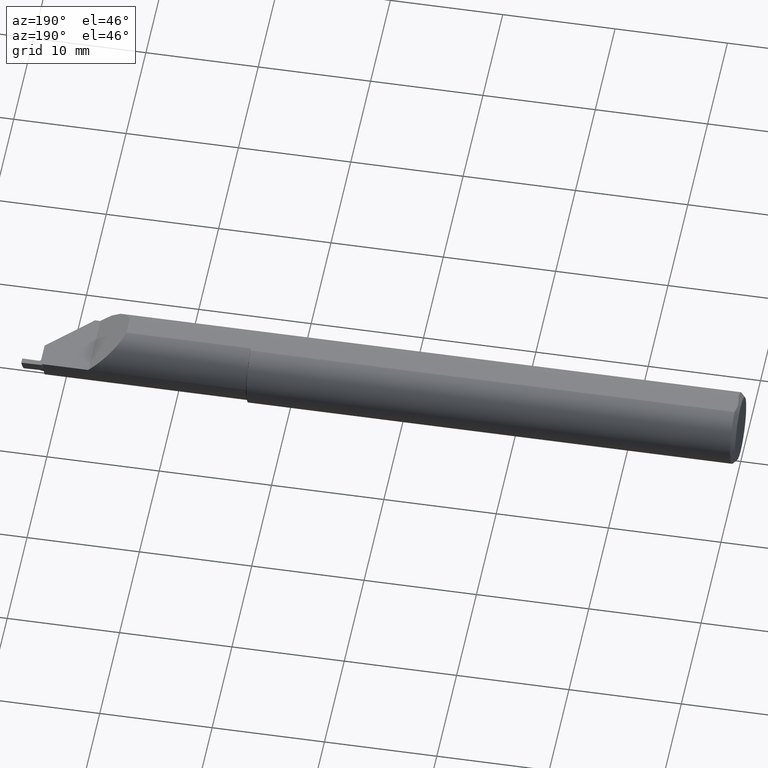
[diagram: clean part render]
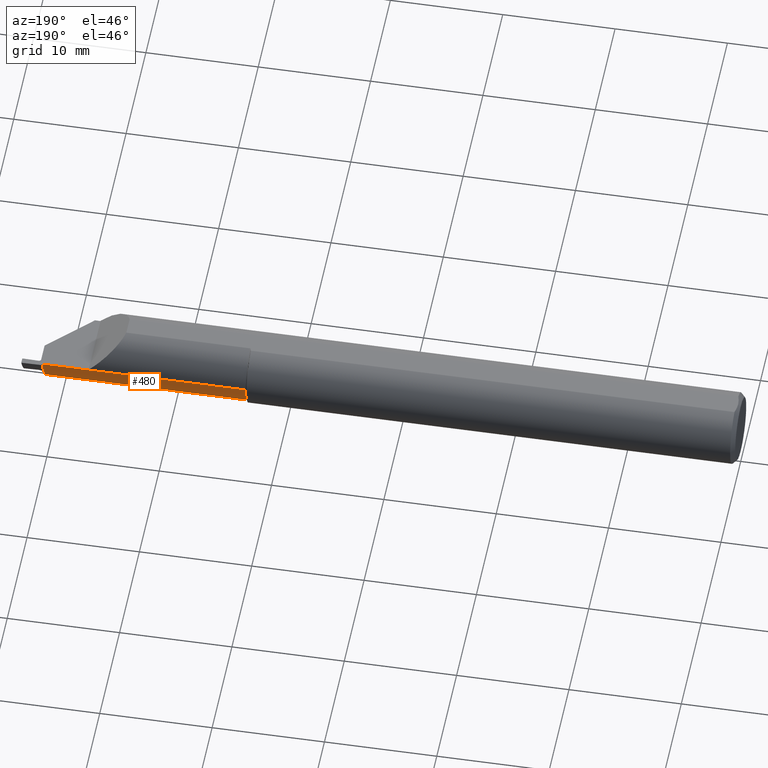
[diagram: same view with one face highlighted and labeled with its STEP entity id]
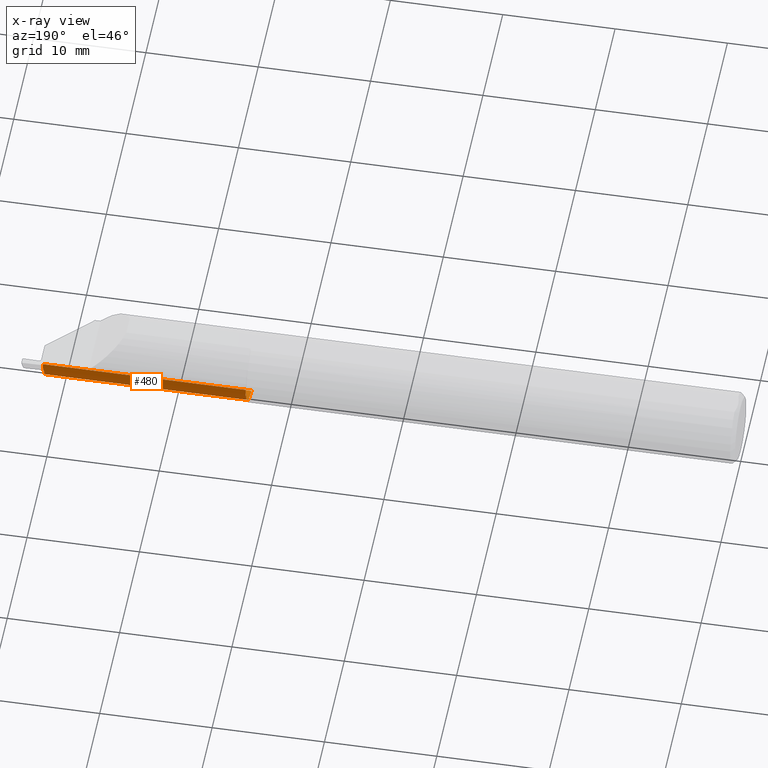
[diagram: x-ray of the same camera — body ghosted, the highlighted face saturated]
A machine part, auxiliary view. The second image highlights one B-rep face of the part: STEP entity #480.
The next image is the same camera in x-ray: the body ghosted, the highlighted face saturated — about 0% of this face is hidden behind the body in this view.
In plain terms, the highlighted cylindrical surface (edge-blend (fillet) strip) has radius 3.175 mm, axis along (1, 0, -0).
Its self-contained STEP definition (entity closure, byte-faithful):
#17 = CARTESIAN_POINT ( 'NONE',  ( 2.430000000000000160, -0.01115076164021940389, 0.000000000000000000 ) ) ;
#18 = VERTEX_POINT ( 'NONE', #173 ) ;
#27 = ORIENTED_EDGE ( 'NONE', *, *, #829, .F. ) ;
#54 = AXIS2_PLACEMENT_3D ( 'NONE', #88, #439, #382 ) ;
#69 = VERTEX_POINT ( 'NONE', #295 ) ;
#88 = CARTESIAN_POINT ( 'NONE',  ( 2.424999999999999822, -0.01115076164021940389, 0.000000000000000000 ) ) ;
#135 = CARTESIAN_POINT ( 'NONE',  ( 2.422843776397741067, 0.1044787311100553451, -0.04748494926094129487 ) ) ;
#137 = CARTESIAN_POINT ( 'NONE',  ( 1.715000000000000080, -0.01115076164021948195, 0.000000000000000000 ) ) ;
#142 = CARTESIAN_POINT ( 'NONE',  ( 2.430000000000000160, 0.1138492383597806412, 0.000000000000000000 ) ) ;
#146 = CIRCLE ( 'NONE', #54, 0.1250000000000001110 ) ;
#158 = CARTESIAN_POINT ( 'NONE',  ( 2.422940269560077020, 0.1069406022796521444, -0.04112310530747520509 ) ) ;
#161 = CARTESIAN_POINT ( 'NONE',  ( 2.422843776397741067, 0.1044787311100553451, -0.04748494926094129487 ) ) ;
#173 = CARTESIAN_POINT ( 'NONE',  ( 2.424999999999999822, 0.1106539908770247521, -0.02808206303341891780 ) ) ;
#178 = CARTESIAN_POINT ( 'NONE',  ( 2.423124072744776036, 0.08842056414315845048, -0.08658781721764803596 ) ) ;
#181 = EDGE_CURVE ( 'NONE', #709, #649, #434, .T. ) ;
#194 = CYLINDRICAL_SURFACE ( 'NONE', #786, 0.1250000000000000555 ) ;
#211 = B_SPLINE_CURVE_WITH_KNOTS ( 'NONE', 3,
 ( #353, #845, #158, #625, #438, #710 ),
 .UNSPECIFIED., .F., .F.,
 ( 4, 2, 4 ),
 ( 0.0005002341761980562624, 0.0007616272360342175255, 0.001023020295870378897 ),
 .UNSPECIFIED. ) ;
#228 = CARTESIAN_POINT ( 'NONE',  ( 2.424413256839188957, 0.01456325683918885047, -0.1223265680612378864 ) ) ;
#237 = CARTESIAN_POINT ( 'NONE',  ( 2.430000000000000160, 0.1138492383597806412, 0.000000000000000000 ) ) ;
#241 = LINE ( 'NONE', #237, #886 ) ;
#249 = EDGE_CURVE ( 'NONE', #649, #18, #211, .T. ) ;
#259 = EDGE_CURVE ( 'NONE', #721, #724, #760, .T. ) ;
#266 = AXIS2_PLACEMENT_3D ( 'NONE', #137, #635, #425 ) ;
#280 = DIRECTION ( 'NONE',  ( 0.000000000000000000, 1.000000000000000000, 0.000000000000000000 ) ) ;
#295 = CARTESIAN_POINT ( 'NONE',  ( 2.405955109769241318, -0.003894890230758989852, -0.1247892316271314583 ) ) ;
#301 = CARTESIAN_POINT ( 'NONE',  ( 1.715000000000000080, 0.1138492383597805441, 0.000000000000000000 ) ) ;
#304 = DIRECTION ( 'NONE',  ( 1.000000000000000000, 1.096770570373022412E-16, -0.000000000000000000 ) ) ;
#333 = EDGE_CURVE ( 'NONE', #413, #69, #588, .T. ) ;
#349 = ORIENTED_EDGE ( 'NONE', *, *, #733, .F. ) ;
#350 = DIRECTION ( 'NONE',  ( 1.000000000000000000, 1.096770570373022289E-16, -0.000000000000000000 ) ) ;
#353 = CARTESIAN_POINT ( 'NONE',  ( 2.422843776397741067, 0.1044787311100553451, -0.04748494926094129487 ) ) ;
#367 = ORIENTED_EDGE ( 'NONE', *, *, #249, .F. ) ;
#372 = ORIENTED_EDGE ( 'NONE', *, *, #181, .F. ) ;
#382 = DIRECTION ( 'NONE',  ( 0.000000000000000000, 1.000000000000000000, 0.000000000000000000 ) ) ;
#396 = CARTESIAN_POINT ( 'NONE',  ( 2.418327507916967711, 0.008477507916967457272, -0.1236058409348846504 ) ) ;
#403 = EDGE_CURVE ( 'NONE', #871, #724, #241, .T. ) ;
#404 = ORIENTED_EDGE ( 'NONE', *, *, #403, .F. ) ;
#413 = VERTEX_POINT ( 'NONE', #453 ) ;
#425 = DIRECTION ( 'NONE',  ( 0.000000000000000000, 1.000000000000000000, 0.000000000000000000 ) ) ;
#434 =( BOUNDED_CURVE ( )  B_SPLINE_CURVE ( 3, ( #525, #756, #178, #135 ),
 .UNSPECIFIED., .F., .T. ) 
 B_SPLINE_CURVE_WITH_KNOTS ( ( 4, 4 ),
 ( 1.777987690206964233, 2.751926524091296677 ),
 .UNSPECIFIED. ) 
 CURVE ( )  GEOMETRIC_REPRESENTATION_ITEM ( )  RATIONAL_B_SPLINE_CURVE ( ( 1.000000000000000000, 0.9225033836062914716, 0.9225033836062914716, 1.000000000000000000 ) ) 
 REPRESENTATION_ITEM ( '' )  );
#438 = CARTESIAN_POINT ( 'NONE',  ( 2.423977147130281562, 0.1099123102848302141, -0.03129907101718395340 ) ) ;
#439 = DIRECTION ( 'NONE',  ( 1.000000000000000000, 1.096770570373022289E-16, -0.000000000000000000 ) ) ;
#453 = CARTESIAN_POINT ( 'NONE',  ( 1.715000000000000080, -0.003894890230802504089, -0.1247892316271320273 ) ) ;
#480 = ADVANCED_FACE ( 'NONE', ( #812 ), #194, .T. ) ;
#497 = VECTOR ( 'NONE', #304, 39.37007874015748143 ) ;
#502 = EDGE_LOOP ( 'NONE', ( #634, #699, #404, #349, #367, #372, #27, #549 ) ) ;
#519 = DIRECTION ( 'NONE',  ( -1.000000000000000000, -1.096770570373022412E-16, 0.000000000000000000 ) ) ;
#525 = CARTESIAN_POINT ( 'NONE',  ( 2.424413256839188957, 0.01456325683918885047, -0.1223265680612378864 ) ) ;
#529 = EDGE_CURVE ( 'NONE', #413, #721, #658, .T. ) ;
#549 = ORIENTED_EDGE ( 'NONE', *, *, #333, .F. ) ;
#588 = LINE ( 'NONE', #790, #497 ) ;
#594 = CARTESIAN_POINT ( 'NONE',  ( 2.265000000000000124, 0.1138492383597806273, 0.000000000000000000 ) ) ;
#601 = CARTESIAN_POINT ( 'NONE',  ( 2.412163376247374647, 0.002313376247374147442, -0.1244282518963175654 ) ) ;
#605 = CARTESIAN_POINT ( 'NONE',  ( 2.405955109769241318, -0.003894890230758989852, -0.1247892316271314583 ) ) ;
#625 = CARTESIAN_POINT ( 'NONE',  ( 2.423555821235743757, 0.1090111831769196155, -0.03460906009050328941 ) ) ;
#634 = ORIENTED_EDGE ( 'NONE', *, *, #529, .T. ) ;
#635 = DIRECTION ( 'NONE',  ( 1.000000000000000000, 1.096770570373022289E-16, -0.000000000000000000 ) ) ;
#649 = VERTEX_POINT ( 'NONE', #161 ) ;
#658 = CIRCLE ( 'NONE', #266, 0.1250000000000000278 ) ;
#699 = ORIENTED_EDGE ( 'NONE', *, *, #259, .T. ) ;
#709 = VERTEX_POINT ( 'NONE', #228 ) ;
#710 = CARTESIAN_POINT ( 'NONE',  ( 2.424999999999999822, 0.1106539908770247521, -0.02808206303341891780 ) ) ;
#715 = DIRECTION ( 'NONE',  ( 1.000000000000000000, 1.096770570373022412E-16, -0.000000000000000000 ) ) ;
#721 = VERTEX_POINT ( 'NONE', #301 ) ;
#724 = VERTEX_POINT ( 'NONE', #594 ) ;
#733 = EDGE_CURVE ( 'NONE', #18, #871, #146, .T. ) ;
#756 = CARTESIAN_POINT ( 'NONE',  ( 2.423691181935317740, 0.05593090037651915480, -0.1136307600513542793 ) ) ;
#760 = LINE ( 'NONE', #142, #828 ) ;
#786 = AXIS2_PLACEMENT_3D ( 'NONE', #17, #350, #280 ) ;
#790 = CARTESIAN_POINT ( 'NONE',  ( 2.069999999999999840, -0.003894890230801667085, -0.1247892316271320134 ) ) ;
#812 = FACE_OUTER_BOUND ( 'NONE', #502, .T. ) ;
#828 = VECTOR ( 'NONE', #715, 39.37007874015748143 ) ;
#829 = EDGE_CURVE ( 'NONE', #69, #709, #841, .T. ) ;
#841 =( BOUNDED_CURVE ( )  B_SPLINE_CURVE ( 3, ( #605, #601, #396, #873 ),
 .UNSPECIFIED., .F., .T. ) 
 B_SPLINE_CURVE_WITH_KNOTS ( ( 4, 4 ),
 ( 4.770468598922496639, 4.919580343796758015 ),
 .UNSPECIFIED. ) 
 CURVE ( )  GEOMETRIC_REPRESENTATION_ITEM ( )  RATIONAL_B_SPLINE_CURVE ( ( 1.000000000000000000, 0.9981479987413323096, 0.9981479987413323096, 1.000000000000000000 ) ) 
 REPRESENTATION_ITEM ( '' )  );
#845 = CARTESIAN_POINT ( 'NONE',  ( 2.422821156798578457, 0.1057746070781616643, -0.04432939190663130052 ) ) ;
#871 = VERTEX_POINT ( 'NONE', #875 ) ;
#873 = CARTESIAN_POINT ( 'NONE',  ( 2.424413256839188957, 0.01456325683918885047, -0.1223265680612378864 ) ) ;
#875 = CARTESIAN_POINT ( 'NONE',  ( 2.424999999999999822, 0.1138492383597806967, 0.000000000000000000 ) ) ;
#886 = VECTOR ( 'NONE', #519, 39.37007874015748143 ) ;